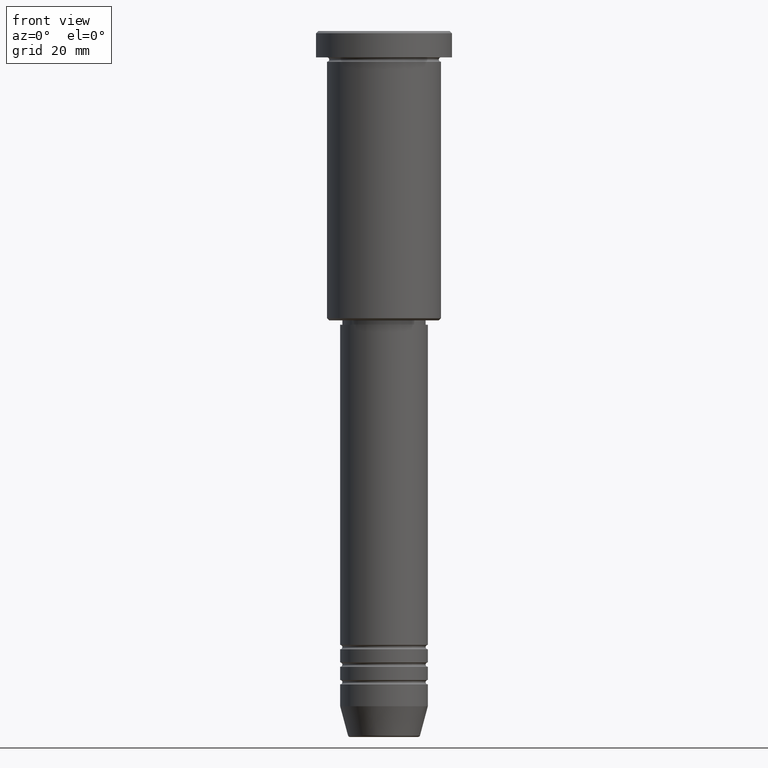
[diagram: clean part render]
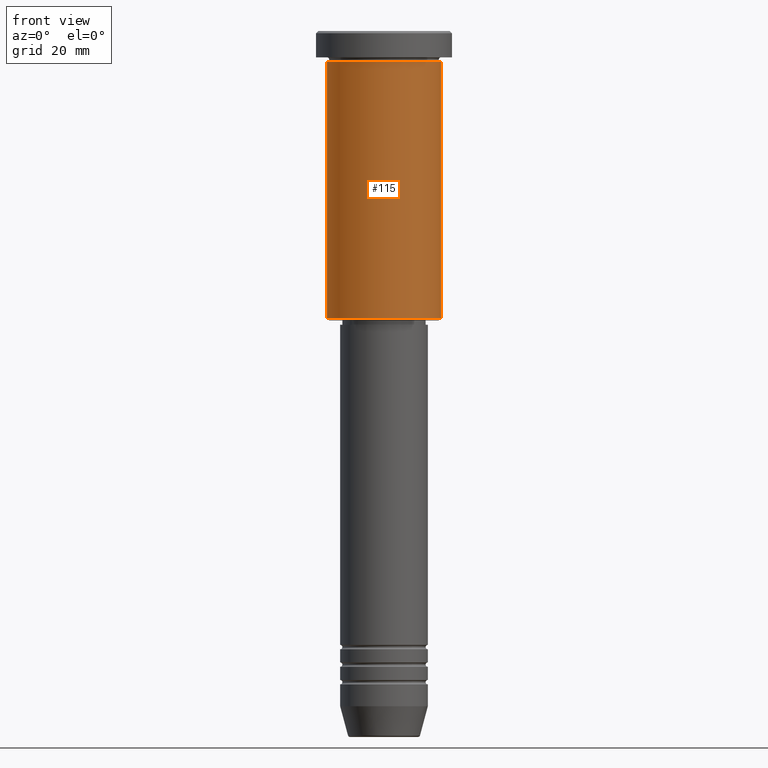
[diagram: same view with one face highlighted and labeled with its STEP entity id]
A machine part, front view. The second image highlights one B-rep face of the part: STEP entity #115.
In plain terms, the highlighted cylindrical surface (partial cylindrical patch) has radius 13 mm, axis along (-0, -0, 1).
Its self-contained STEP definition (entity closure, byte-faithful):
#24 = LINE ( 'NONE', #390, #257 ) ;
#105 = VERTEX_POINT ( 'NONE', #408 ) ;
#115 = ADVANCED_FACE ( 'NONE', ( #786 ), #1148, .T. ) ;
#157 = EDGE_CURVE ( 'NONE', #742, #944, #1047, .T. ) ;
#169 = DIRECTION ( 'NONE',  ( 1.000000000000000000, 0.000000000000000000, 0.000000000000000000 ) ) ;
#187 = CARTESIAN_POINT ( 'NONE',  ( 13.00000000000000178, 0.000000000000000000, -65.50000000000002842 ) ) ;
#226 = CARTESIAN_POINT ( 'NONE',  ( -13.00000000000000178, 1.592040838891559293E-15, -6.999999999999995559 ) ) ;
#231 = ORIENTED_EDGE ( 'NONE', *, *, #392, .F. ) ;
#257 = VECTOR ( 'NONE', #755, 1000.000000000000000 ) ;
#328 = CARTESIAN_POINT ( 'NONE',  ( 0.000000000000000000, 0.000000000000000000, 0.000000000000000000 ) ) ;
#331 = CARTESIAN_POINT ( 'NONE',  ( 0.000000000000000000, 0.000000000000000000, -6.999999999999995559 ) ) ;
#334 = DIRECTION ( 'NONE',  ( -0.000000000000000000, -0.000000000000000000, 1.000000000000000000 ) ) ;
#354 = AXIS2_PLACEMENT_3D ( 'NONE', #1171, #1071, #708 ) ;
#375 = AXIS2_PLACEMENT_3D ( 'NONE', #328, #334, #1156 ) ;
#390 = CARTESIAN_POINT ( 'NONE',  ( -13.00000000000000178, 1.592040838891559293E-15, 0.000000000000000000 ) ) ;
#391 = ORIENTED_EDGE ( 'NONE', *, *, #596, .T. ) ;
#392 = EDGE_CURVE ( 'NONE', #742, #464, #24, .T. ) ;
#406 = CARTESIAN_POINT ( 'NONE',  ( -13.00000000000000178, 1.592040838891559293E-15, -65.50000000000002842 ) ) ;
#408 = CARTESIAN_POINT ( 'NONE',  ( 13.00000000000000178, 0.000000000000000000, -6.999999999999995559 ) ) ;
#464 = VERTEX_POINT ( 'NONE', #226 ) ;
#526 = DIRECTION ( 'NONE',  ( -0.000000000000000000, -0.000000000000000000, 1.000000000000000000 ) ) ;
#596 = EDGE_CURVE ( 'NONE', #944, #105, #798, .T. ) ;
#708 = DIRECTION ( 'NONE',  ( -1.000000000000000000, 0.000000000000000000, 0.000000000000000000 ) ) ;
#711 = ORIENTED_EDGE ( 'NONE', *, *, #157, .T. ) ;
#742 = VERTEX_POINT ( 'NONE', #406 ) ;
#755 = DIRECTION ( 'NONE',  ( -0.000000000000000000, -0.000000000000000000, 1.000000000000000000 ) ) ;
#786 = FACE_OUTER_BOUND ( 'NONE', #826, .T. ) ;
#798 = LINE ( 'NONE', #990, #1026 ) ;
#826 = EDGE_LOOP ( 'NONE', ( #231, #711, #391, #1111 ) ) ;
#836 = EDGE_CURVE ( 'NONE', #464, #105, #1112, .T. ) ;
#944 = VERTEX_POINT ( 'NONE', #187 ) ;
#957 = AXIS2_PLACEMENT_3D ( 'NONE', #331, #988, #169 ) ;
#988 = DIRECTION ( 'NONE',  ( -0.000000000000000000, -0.000000000000000000, 1.000000000000000000 ) ) ;
#990 = CARTESIAN_POINT ( 'NONE',  ( 13.00000000000000178, 0.000000000000000000, 0.000000000000000000 ) ) ;
#1026 = VECTOR ( 'NONE', #526, 1000.000000000000000 ) ;
#1047 = CIRCLE ( 'NONE', #354, 13.00000000000000178 ) ;
#1071 = DIRECTION ( 'NONE',  ( -0.000000000000000000, -0.000000000000000000, 1.000000000000000000 ) ) ;
#1111 = ORIENTED_EDGE ( 'NONE', *, *, #836, .F. ) ;
#1112 = CIRCLE ( 'NONE', #957, 13.00000000000000178 ) ;
#1148 = CYLINDRICAL_SURFACE ( 'NONE', #375, 13.00000000000000178 ) ;
#1156 = DIRECTION ( 'NONE',  ( 1.000000000000000000, 0.000000000000000000, 0.000000000000000000 ) ) ;
#1171 = CARTESIAN_POINT ( 'NONE',  ( 0.000000000000000000, 0.000000000000000000, -65.50000000000002842 ) ) ;